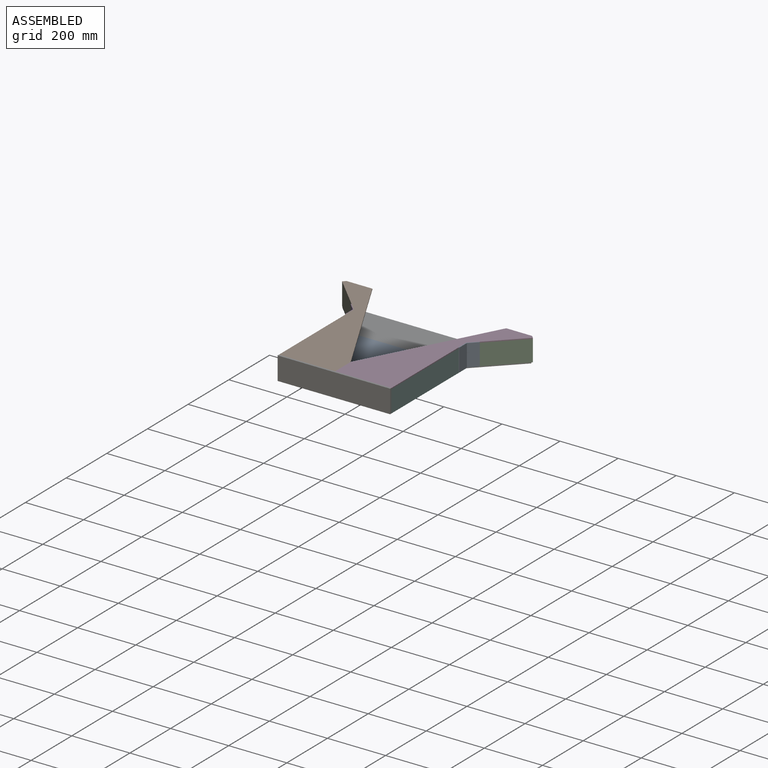
[diagram: assembled view]
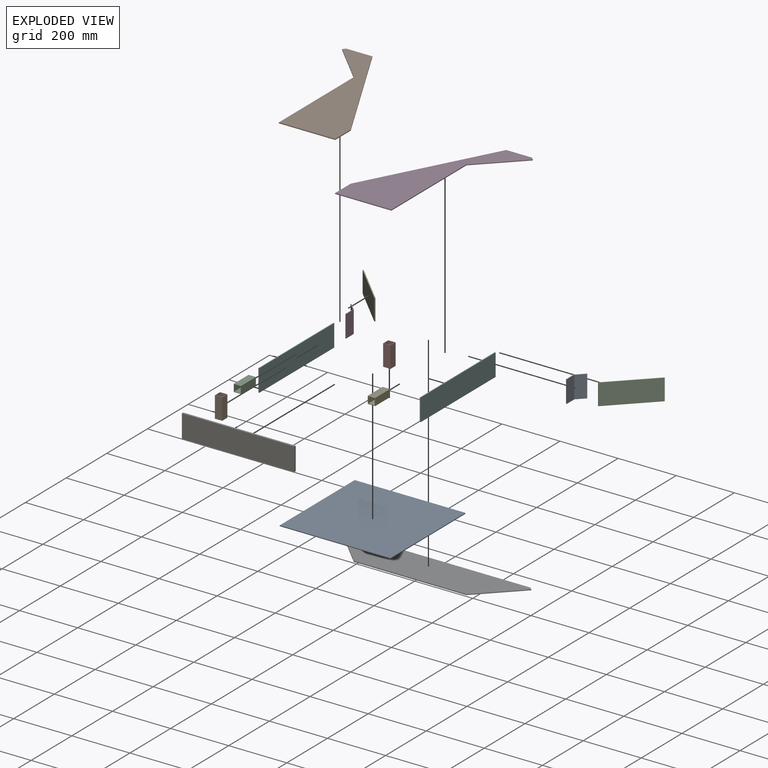
[diagram: exploded view]
GUIDED TOUR — MATED ASSEMBLY (Onshape document d573dde9a686d6dadded9dd4, AutoMate assembly d573dde9a686d6dadded9dd4_402b70009f37f6757999efcf_c0ec6f7262777a5b8ceee81c_default)

This assembly has 15 components, labeled P0..P14 below (a component is one placed occurrence of a part; the same part can appear more than once), held together by 14 mates. A mate is a constraint between two components; its type names the relative motion it leaves free:
  FASTENED — locks the two components together rigidly (no relative motion).
Axis/direction vectors are unit vectors and 'through' points are millimeter coordinates, both in the assembly's world frame.

MATES
  1. FASTENED "Fastened 15": P5 <-> P11, direction (-1.000, 0.000, 0.000) through (-198.62, 184.51, 35.01) mm
  2. FASTENED "Fastened 1": P8 <-> P2, direction (-0.707, 0.707, 0.000) through (188.73, 184.51, 38.18) mm
  3. FASTENED "Fastened 5": P0 <-> P1, direction (0.000, 0.000, 1.000) through (-195.44, -183.79, 38.18) mm
  4. FASTENED "Fastened 14": P8 <-> P13, direction (-1.000, 0.000, 0.000) through (188.73, 184.51, 38.18) mm
  5. FASTENED "Fastened 8": P0 <-> P5, direction (-1.000, 0.000, 0.000) through (-195.44, 184.51, 35.01) mm
  6. FASTENED "Fastened 7": P0 <-> P13, direction (1.000, 0.000, 0.000) through (185.56, 184.51, 35.01) mm
  7. FASTENED "Fastened 10": P7 <-> P12, direction (0.000, 1.000, 0.000) through (160.16, -158.39, 111.21) mm
  8. FASTENED "Fastened 13": P9 <-> P5, direction (0.000, 0.000, -1.000) through (-198.62, -183.79, 111.21) mm
  9. FASTENED "Fastened 9": P6 <-> P13, direction (0.000, 1.000, 0.000) through (188.73, -183.79, 35.01) mm
  10. FASTENED "Fastened 17": P14 <-> P0, direction (0.000, -1.000, 0.000) through (-4.94, 184.51, 36.59) mm
  11. FASTENED "Fastened 11": P10 <-> P1, direction (0.000, -1.000, 0.000) through (-195.44, -158.39, 111.21) mm
  12. FASTENED "Fastened 16": P4 <-> P11, direction (-0.707, -0.707, 0.000) through (-198.62, 184.51, 38.18) mm
  13. FASTENED "Fastened 12": P3 <-> P13, direction (0.000, 0.000, 1.000) through (188.73, -183.79, 114.38) mm
  14. FASTENED "Fastened 6": P0 <-> P7, direction (0.000, 0.000, 1.000) through (185.56, -183.79, 38.18) mm

ASSEMBLY ORDER
  1. P11 — the base component [order verified]
  2. P4 [order verified]
  3. P5 [order verified]
  4. P12 [order verified]
  5. P13 [order verified]
  6. P7 [order verified]
  7. P2 [order verified]
  8. P8 [order verified]
  9. P10 [order verified]
  10. P1 [order verified]
  11. P0 [order verified]
  12. P9 [order verified]
  13. P14 [order verified]
  14. P3 [order verified]
  15. P6 [order verified]
Order-tag legend:
  [order verified] — this step's position reverses a verified removal order: the component was checked to insert without passing through the ones already placed.

Of the 15 components, 10 carry the full construction recipe — the FeatureScript program that regenerates the part's solid from scratch; the rest are supplied as boundary geometry only.
Because this assembly has more than 12 components, the tour below covers the 12 most significant ones individually (every recipe-attached component first, then the largest by part volume), in assembly order; the remaining 3 are summarized together in a grouped section at the end.
Each toured component is shown spotlighted twice — in the assembled view, then in the exploded view, where a leader line traces a displaced component back to its assembled socket (saturated green if recipe-attached, orange if geometry-only; every other component desaturated gray) — followed by its recipe or geometry summary and the mates that hold it.
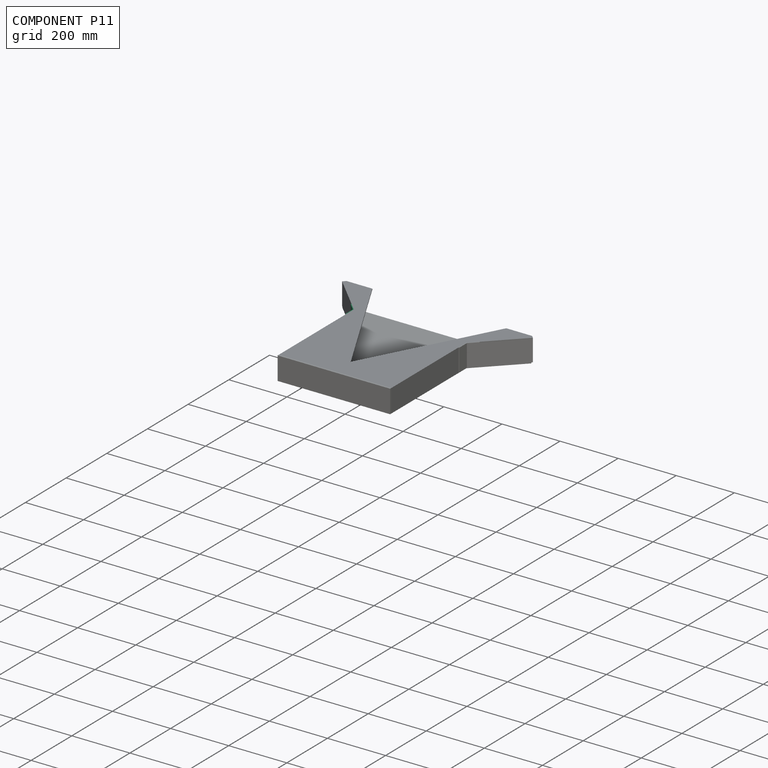
[diagram: component P11 — assembled]
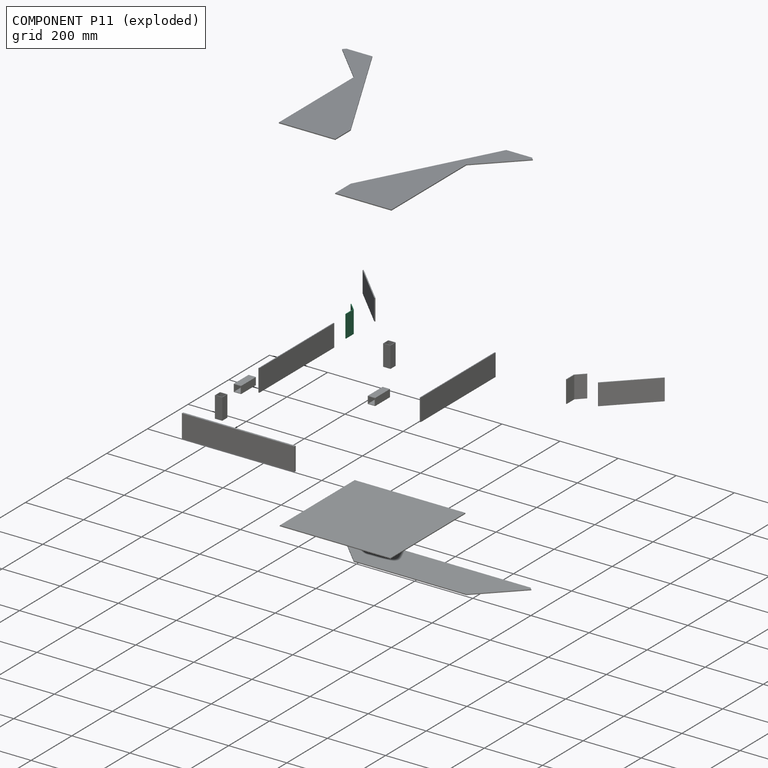
[diagram: component P11 — exploded]
COMPONENT P11 — same part as P8 (CADFS 00448065); its construction recipe is shown at P8.
Held by: FASTENED mate "Fastened 15" to P5; FASTENED mate "Fastened 16" to P4.
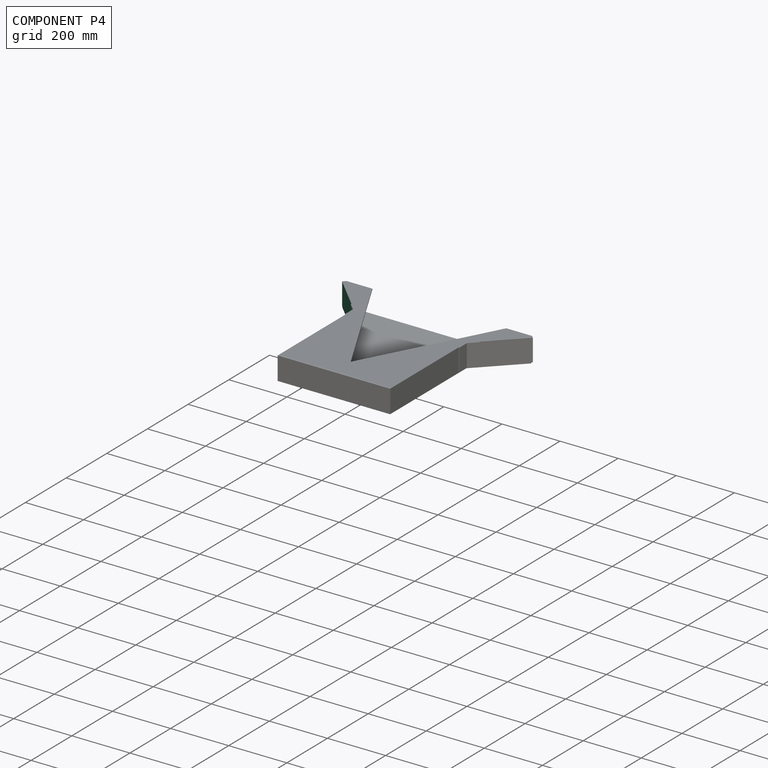
[diagram: component P4 — assembled]
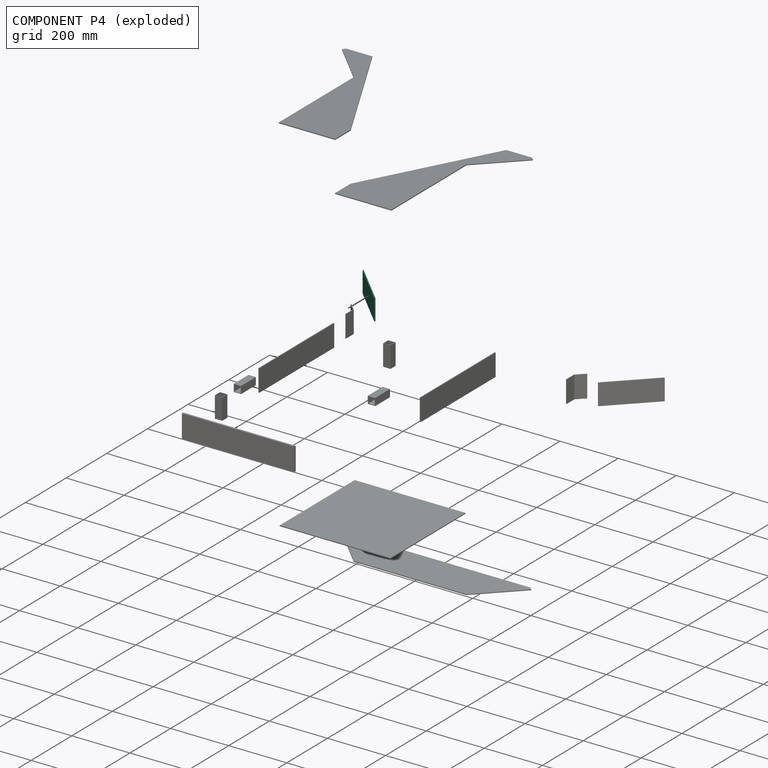
[diagram: component P4 — exploded]
COMPONENT P4 — same part as P2 (CADFS 00448063); its construction recipe is shown at P2.
Held by: FASTENED mate "Fastened 16" to P11.
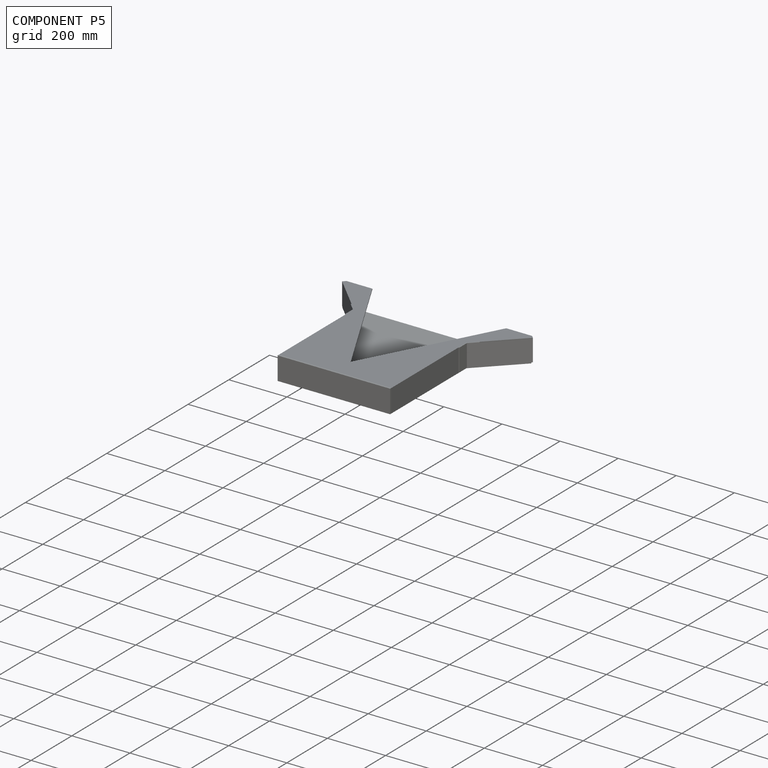
[diagram: component P5 — assembled]
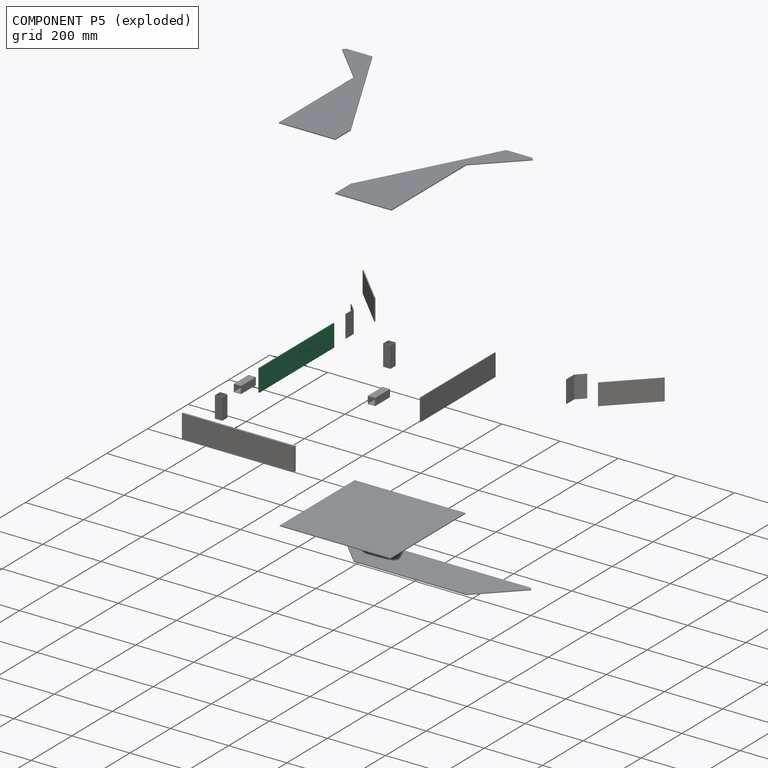
[diagram: component P5 — exploded]
COMPONENT P5 — recipe-attached (CADFS 00448055, mesh-verified: the recipe's output STEP matches this component's geometry to below the mesh-comparison resolution (tessellation chordal tolerance ~0.564 mm)).
Held by: FASTENED mate "Fastened 15" to P11; FASTENED mate "Fastened 8" to P0; FASTENED mate "Fastened 13" to P9.
Construction recipe (FeatureScript — the CAD program that rebuilds this solid; sketch coordinates are in the units given by the * unit suffixes, e.g. mm):

FeatureScript 1549;
import(path : "onshape/std/geometry.fs", version : "1549.0");
import(path : "onshape/std/common.fs", version : "1549.0");
const mm = millimeter;
const VERTEX = EntityType.VERTEX;
const EDGE = EntityType.EDGE;
const FACE = EntityType.FACE;
const BODY = EntityType.BODY;
function v(x, y){return vector(x, y);}
function OD(order){return orderDisambiguation(order);}
function OSD(set){return originalSetDisambiguation(set);}
function TD(topology){return topologyDisambiguation(topology);}
function TDD(query){return trueDependencyDisambiguation(query);}
function sQuery(a, b, c) {return sketchEntityQuery(a, b, c);}

annotation { "Feature Type Name" : "Feature", "Feature Type Description" : "" }
export const myFeature = defineFeature(function(context is Context, id is Id, definition is map)
    precondition{}
    {
        {
            var Q0;
            Q0=qCreatedBy(makeId("Top.planeOp"),FACE);
            var sketch = newSketch(context, id + "F0", { "sketchPlane" : qUnion([Q0])});
            skLineSegment(sketch, "E0.bottom", {"start": v(-184.15, 38.1) * mm, "end": v(184.15, 38.1) * mm});
            skLineSegment(sketch, "E0.top", {"start": v(-184.15, -38.1) * mm, "end": v(184.15, -38.1) * mm});
            skLineSegment(sketch, "E0.left", {"start": v(-184.15, 38.1) * mm, "end": v(-184.15, -38.1) * mm});
            skLineSegment(sketch, "E0.right", {"start": v(184.15, 38.1) * mm, "end": v(184.15, -38.1) * mm});
            skPoint(sketch, "E0.middle", {"position": v(0, 0) * mm});
            skSolve(sketch);
        }
        {
            var Q0;
            Q0=qSketchRegion(id+"F0",true);
            extrude(context, id + "F1", {"entities" : qUnion([Q0]), "depth" : 3.17 * mm});
        }
    });
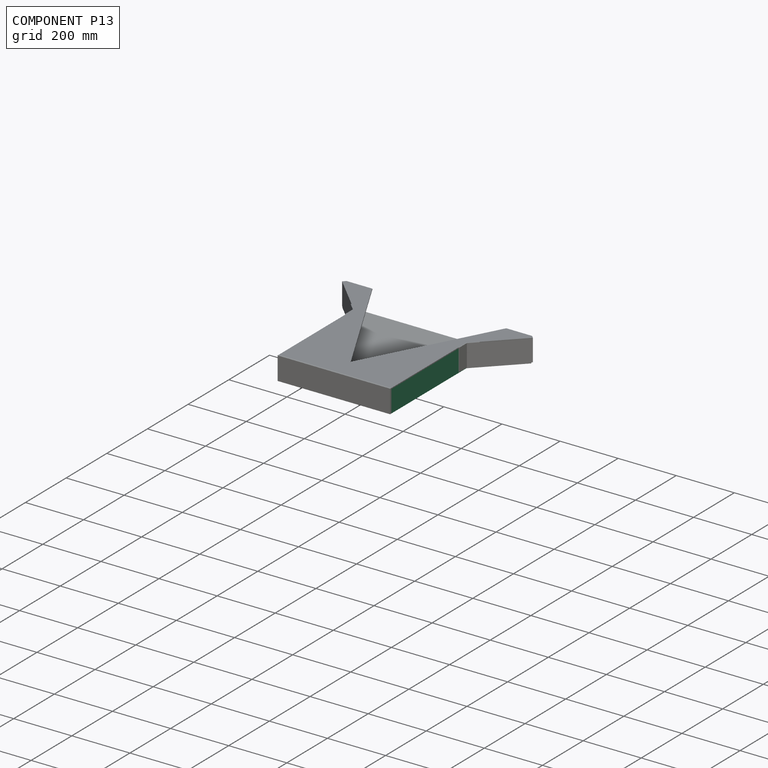
[diagram: component P13 — assembled]
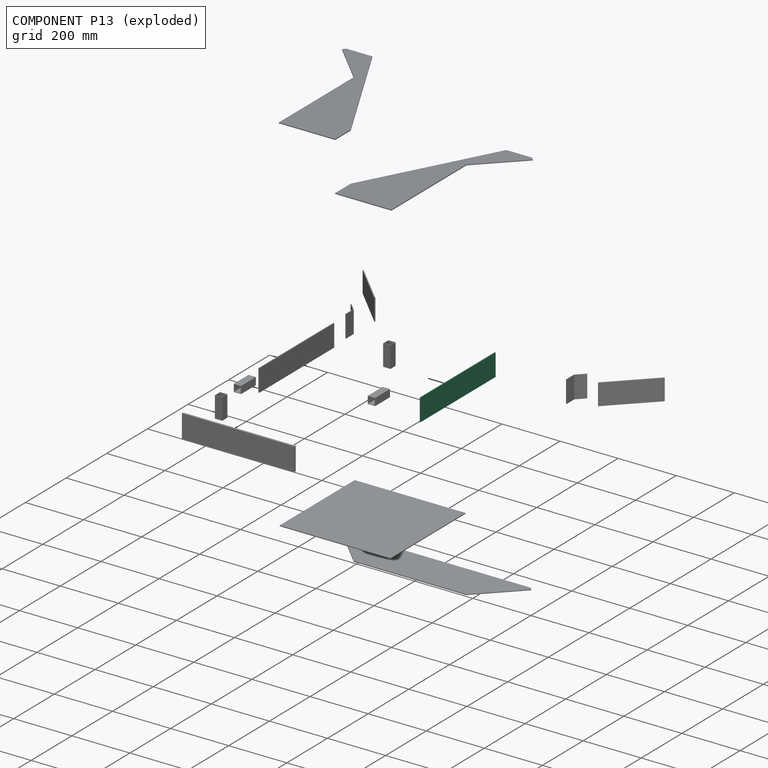
[diagram: component P13 — exploded]
COMPONENT P13 — same part as P5 (CADFS 00448055); its construction recipe is shown at P5.
Held by: FASTENED mate "Fastened 14" to P8; FASTENED mate "Fastened 7" to P0; FASTENED mate "Fastened 9" to P6; FASTENED mate "Fastened 12" to P3.
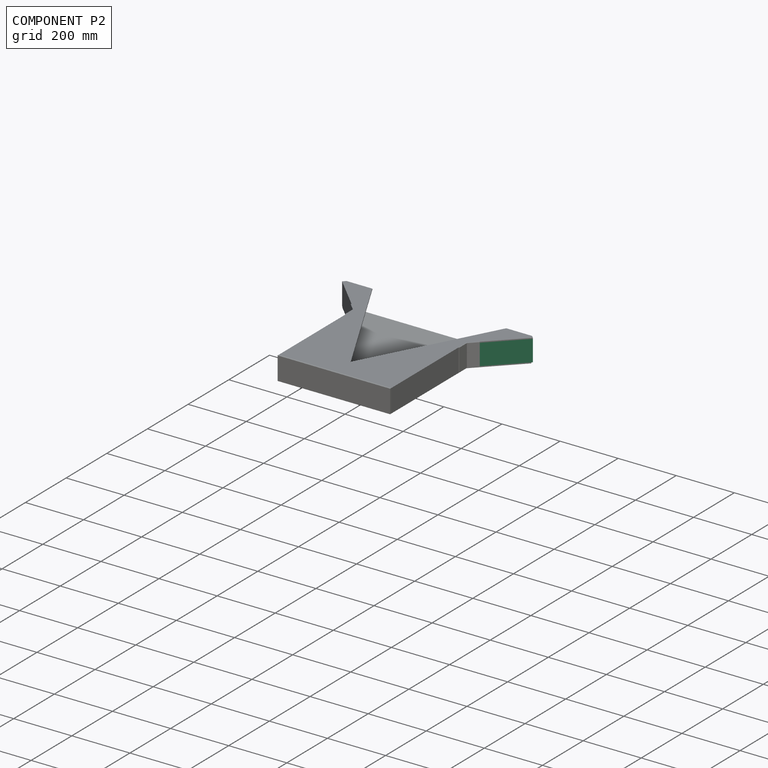
[diagram: component P2 — assembled]
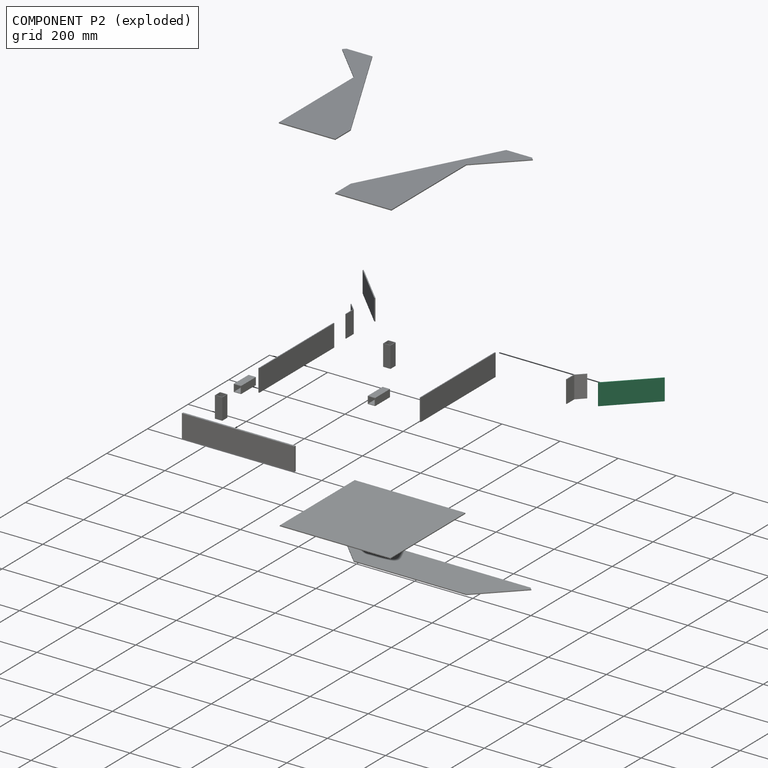
[diagram: component P2 — exploded]
COMPONENT P2 — recipe-attached (CADFS 00448063, mesh-verified: the recipe's output STEP matches this component's geometry to below the mesh-comparison resolution (tessellation chordal tolerance ~0.306 mm)).
Held by: FASTENED mate "Fastened 1" to P8.
Construction recipe (FeatureScript — the CAD program that rebuilds this solid; sketch coordinates are in the units given by the * unit suffixes, e.g. mm):

FeatureScript 1549;
import(path : "onshape/std/geometry.fs", version : "1549.0");
import(path : "onshape/std/common.fs", version : "1549.0");
const mm = millimeter;
const VERTEX = EntityType.VERTEX;
const EDGE = EntityType.EDGE;
const FACE = EntityType.FACE;
const BODY = EntityType.BODY;
function v(x, y){return vector(x, y);}
function OD(order){return orderDisambiguation(order);}
function OSD(set){return originalSetDisambiguation(set);}
function TD(topology){return topologyDisambiguation(topology);}
function TDD(query){return trueDependencyDisambiguation(query);}
function sQuery(a, b, c) {return sketchEntityQuery(a, b, c);}

annotation { "Feature Type Name" : "Feature", "Feature Type Description" : "" }
export const myFeature = defineFeature(function(context is Context, id is Id, definition is map)
    precondition{}
    {
        {
            var Q0;
            Q0=qCreatedBy(makeId("Front.planeOp"),FACE);
            var sketch = newSketch(context, id + "F0", { "sketchPlane" : qUnion([Q0])});
            skLineSegment(sketch, "E0", {"start": v(0, 0) * mm, "end": v(190.5, 0) * mm});
            skLineSegment(sketch, "E1", {"start": v(0, 0) * mm, "end": v(0, 73.02) * mm});
            skLineSegment(sketch, "E2", {"start": v(190.5, 0) * mm, "end": v(190.5, 73.02) * mm});
            skLineSegment(sketch, "E3", {"start": v(0, 73.02) * mm, "end": v(190.5, 73.02) * mm});
            skSolve(sketch);
        }
        {
            var Q0;
            Q0=makeQuery(id+"F0.imprint","IMPRINT",FACE,{"disambiguationData":[TD([[makeQuery(id+"F0.imprint","IMPRINT",EDGE,{"derivedFrom":sQuery(id+"F0.wireOp",EDGE,"E0")}),1.0]])]});
            extrude(context, id + "F1", {"entities" : qUnion([Q0]), "depth" : 3.17 * mm});
        }
    });
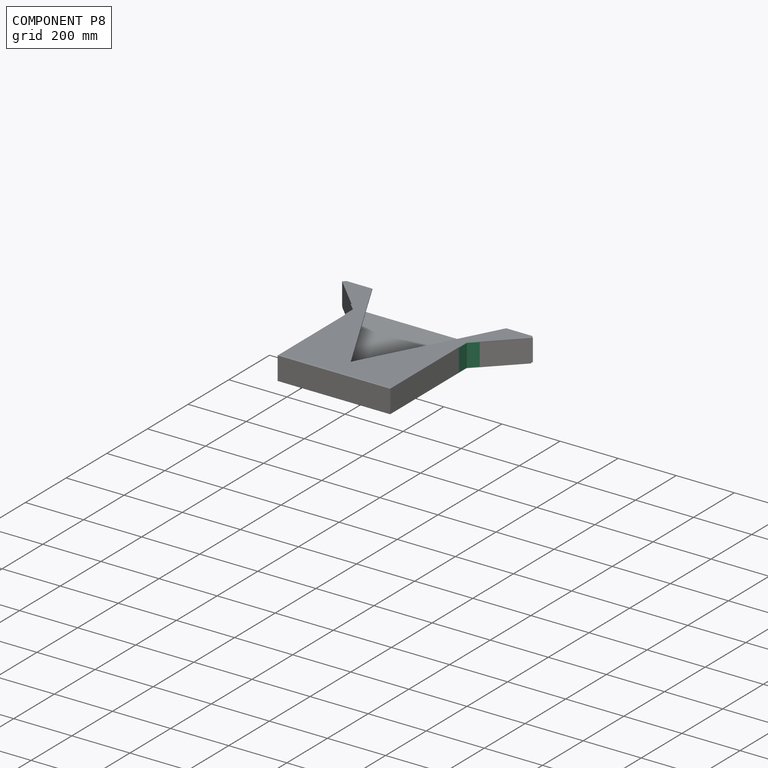
[diagram: component P8 — assembled]
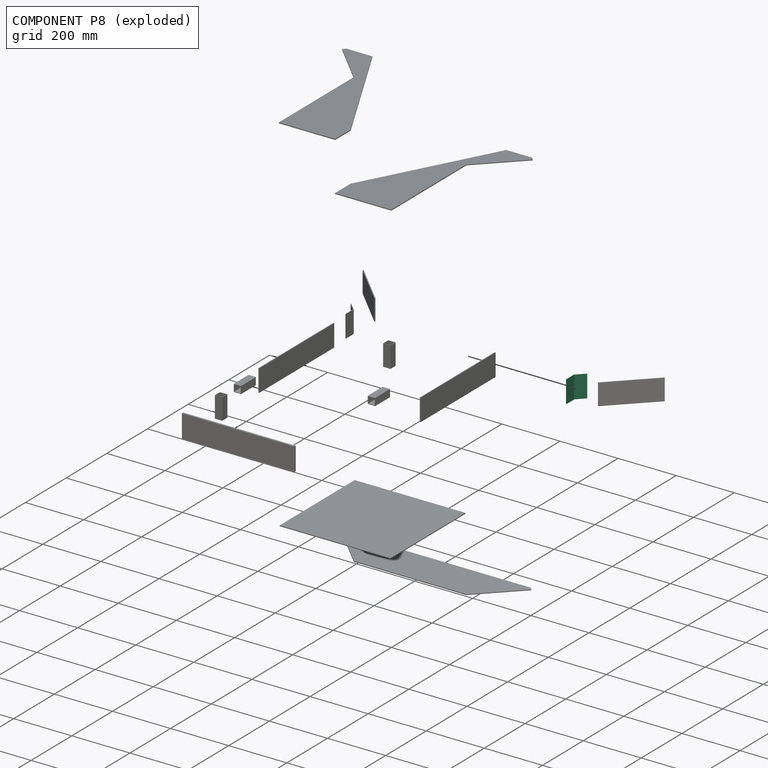
[diagram: component P8 — exploded]
COMPONENT P8 — recipe-attached (CADFS 00448065, mesh-verified: the recipe's output STEP matches this component's geometry to below the mesh-comparison resolution (tessellation chordal tolerance ~0.156 mm)).
Held by: FASTENED mate "Fastened 1" to P2; FASTENED mate "Fastened 14" to P13.
Construction recipe (FeatureScript — the CAD program that rebuilds this solid; sketch coordinates are in the units given by the * unit suffixes, e.g. mm):

FeatureScript 1549;
import(path : "onshape/std/geometry.fs", version : "1549.0");
import(path : "onshape/std/common.fs", version : "1549.0");
const mm = millimeter;
const VERTEX = EntityType.VERTEX;
const EDGE = EntityType.EDGE;
const FACE = EntityType.FACE;
const BODY = EntityType.BODY;
function v(x, y){return vector(x, y);}
function OD(order){return orderDisambiguation(order);}
function OSD(set){return originalSetDisambiguation(set);}
function TD(topology){return topologyDisambiguation(topology);}
function TDD(query){return trueDependencyDisambiguation(query);}
function sQuery(a, b, c) {return sketchEntityQuery(a, b, c);}

annotation { "Feature Type Name" : "Feature", "Feature Type Description" : "" }
export const myFeature = defineFeature(function(context is Context, id is Id, definition is map)
    precondition{}
    {
        {
            var Q0;
            Q0=qCreatedBy(makeId("Front.planeOp"),FACE);
            var sketch = newSketch(context, id + "F0", { "sketchPlane" : qUnion([Q0])});
            skLineSegment(sketch, "E0", {"start": v(0, 0) * mm, "end": v(38.1, 0) * mm});
            skLineSegment(sketch, "E1", {"start": v(38.1, 0) * mm, "end": v(65.04, 26.94) * mm});
            skLineSegment(sketch, "E2.0", {"start": v(37.05, 2.54) * mm, "end": v(63.24, 28.74) * mm});
            skLineSegment(sketch, "E2.1", {"start": v(0, 2.54) * mm, "end": v(37.05, 2.54) * mm});
            skLineSegment(sketch, "E3", {"start": v(0, 2.54) * mm, "end": v(0, 0) * mm});
            skLineSegment(sketch, "E4", {"start": v(63.24, 28.74) * mm, "end": v(65.04, 26.94) * mm});
            skSolve(sketch);
        }
        {
            var Q0;
            Q0=makeQuery(id+"F0.imprint","IMPRINT",FACE,{"disambiguationData":[TD([[makeQuery(id+"F0.imprint","IMPRINT",EDGE,{"derivedFrom":sQuery(id+"F0.wireOp",EDGE,"E0")}),1.0]])]});
            extrude(context, id + "F1", {"entities" : qUnion([Q0]), "depth" : 76.2 * mm});
        }
    });
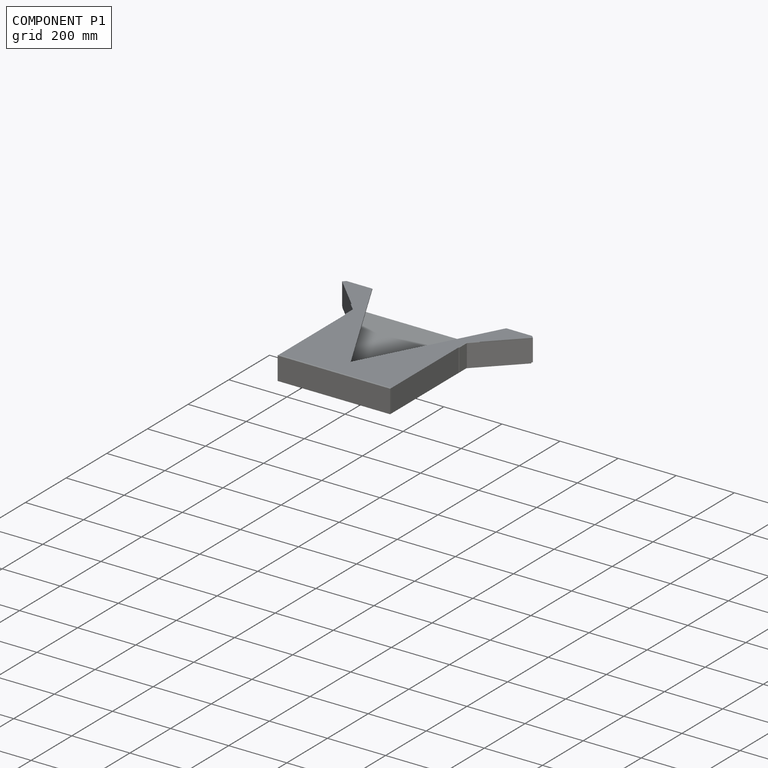
[diagram: component P1 — assembled]
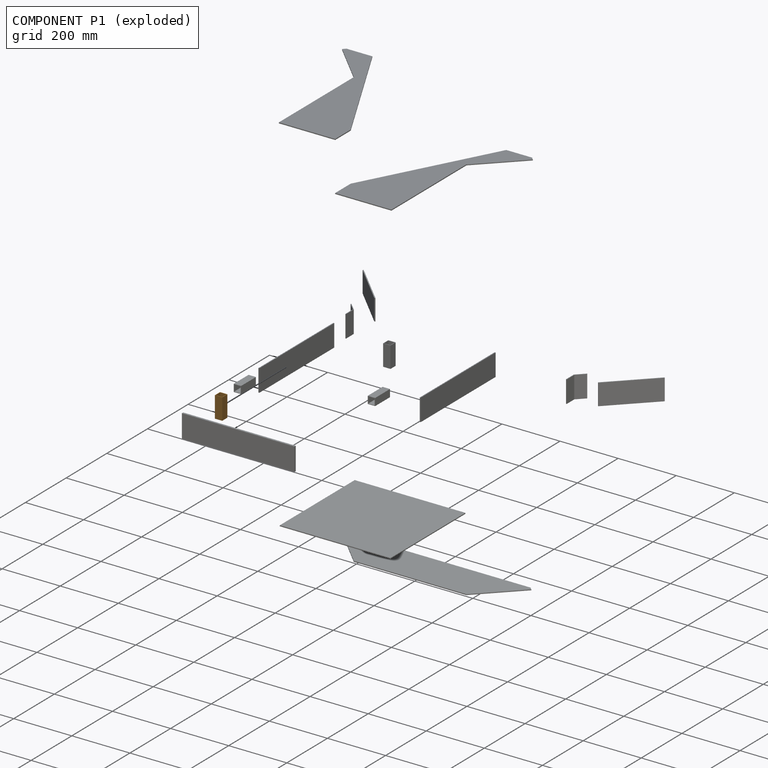
[diagram: component P1 — exploded]
COMPONENT P1 — geometry summary (no construction recipe available for this part):
  bounding box: 73.0 x 25.4 x 25.4 mm
  B-rep topology: 1 solid, 10 faces, 48 edges
  volume: 11042 mm^3 (23% of its bounding box)
  symmetry: 2-fold rotationally symmetric about the x axis; 2-fold rotationally symmetric about the y axis; 4-fold rotationally symmetric about the z axis; mirror-symmetric across its x mid-plane, y mid-plane, z mid-plane
Held by: FASTENED mate "Fastened 5" to P0; FASTENED mate "Fastened 11" to P10.
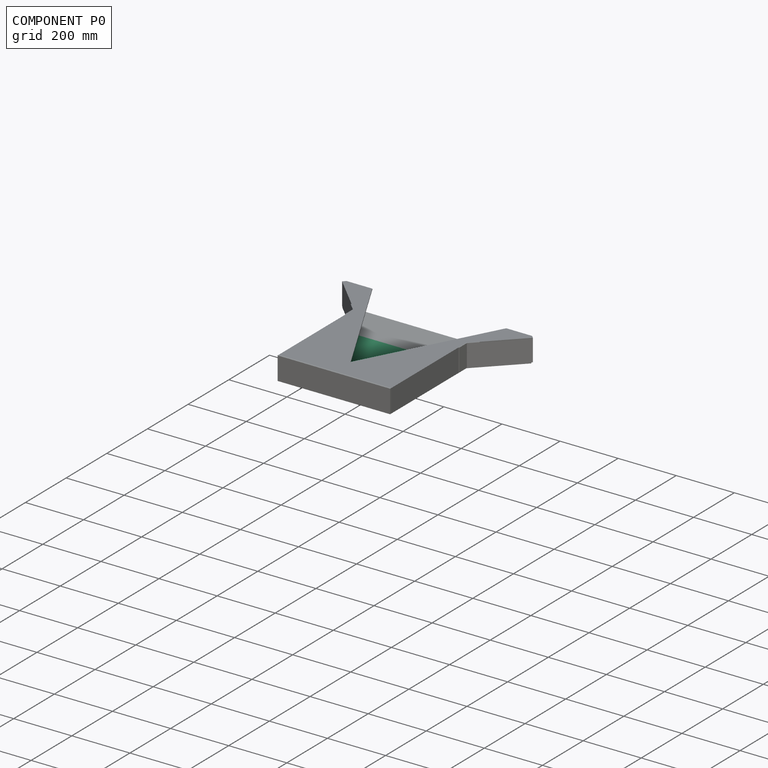
[diagram: component P0 — assembled]
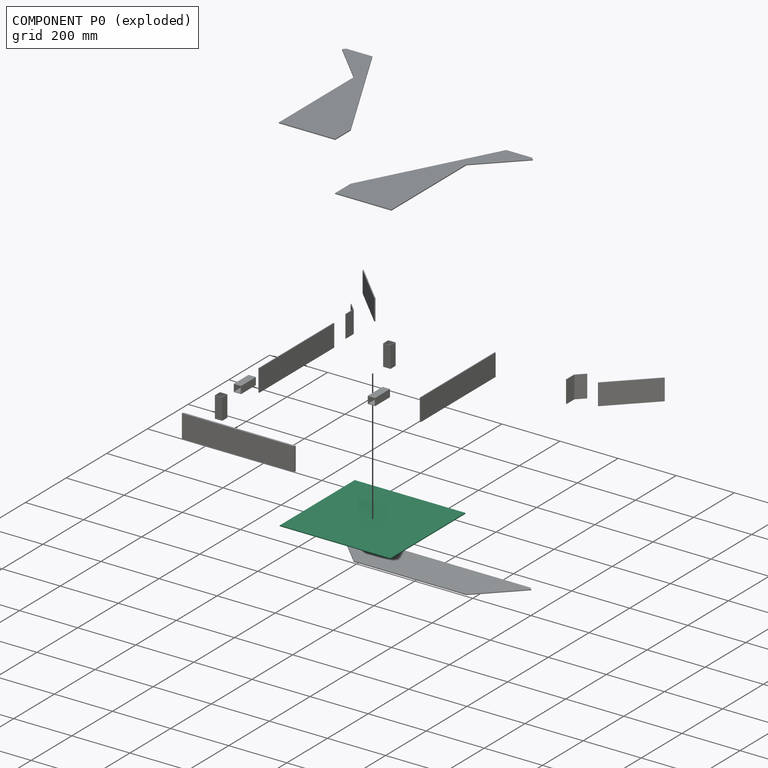
[diagram: component P0 — exploded]
COMPONENT P0 — recipe-attached (CADFS 00448054, mesh-verified: the recipe's output STEP matches this component's geometry to below the mesh-comparison resolution (tessellation chordal tolerance ~0.795 mm)).
Held by: FASTENED mate "Fastened 5" to P1; FASTENED mate "Fastened 8" to P5; FASTENED mate "Fastened 7" to P13; FASTENED mate "Fastened 17" to P14; FASTENED mate "Fastened 6" to P7.
Construction recipe (FeatureScript — the CAD program that rebuilds this solid; sketch coordinates are in the units given by the * unit suffixes, e.g. mm):

FeatureScript 1549;
import(path : "onshape/std/geometry.fs", version : "1549.0");
import(path : "onshape/std/common.fs", version : "1549.0");
const mm = millimeter;
const VERTEX = EntityType.VERTEX;
const EDGE = EntityType.EDGE;
const FACE = EntityType.FACE;
const BODY = EntityType.BODY;
function v(x, y){return vector(x, y);}
function OD(order){return orderDisambiguation(order);}
function OSD(set){return originalSetDisambiguation(set);}
function TD(topology){return topologyDisambiguation(topology);}
function TDD(query){return trueDependencyDisambiguation(query);}
function sQuery(a, b, c) {return sketchEntityQuery(a, b, c);}

annotation { "Feature Type Name" : "Feature", "Feature Type Description" : "" }
export const myFeature = defineFeature(function(context is Context, id is Id, definition is map)
    precondition{}
    {
        {
            var Q0;
            Q0=qCreatedBy(makeId("Top.planeOp"),FACE);
            var sketch = newSketch(context, id + "F0", { "sketchPlane" : qUnion([Q0])});
            skLineSegment(sketch, "E0.bottom", {"start": v(-190.5, 184.15) * mm, "end": v(190.5, 184.15) * mm});
            skLineSegment(sketch, "E0.top", {"start": v(-190.5, -184.15) * mm, "end": v(190.5, -184.15) * mm});
            skLineSegment(sketch, "E0.left", {"start": v(-190.5, 184.15) * mm, "end": v(-190.5, -184.15) * mm});
            skLineSegment(sketch, "E0.right", {"start": v(190.5, 184.15) * mm, "end": v(190.5, -184.15) * mm});
            skPoint(sketch, "E0.middle", {"position": v(0, 0) * mm});
            skSolve(sketch);
        }
        {
            var Q0;
            Q0 = qSketchRegion(id + "F0", true);
            extrude(context, id + "F1", {"entities" : qUnion([Q0]), "depth" : 3.17 * mm});
        }
    });
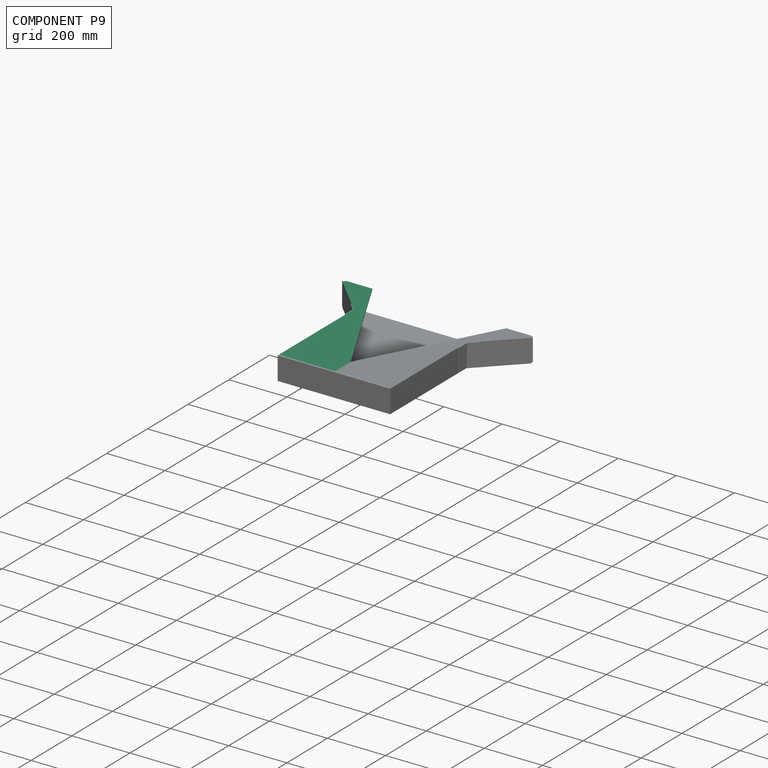
[diagram: component P9 — assembled]
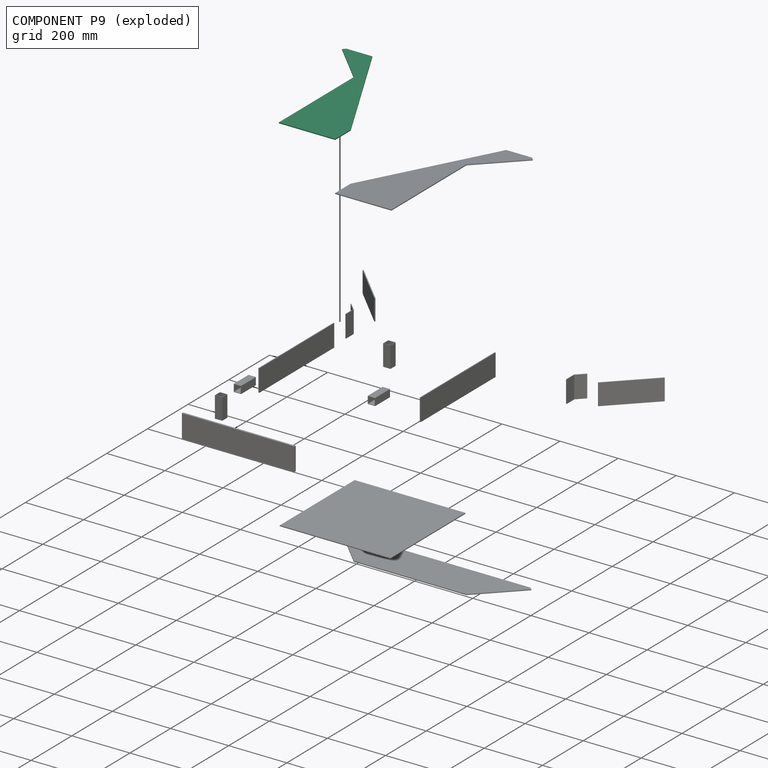
[diagram: component P9 — exploded]
COMPONENT P9 — same part as P3 (CADFS 00448056); its construction recipe is shown at P3.
Held by: FASTENED mate "Fastened 13" to P5.
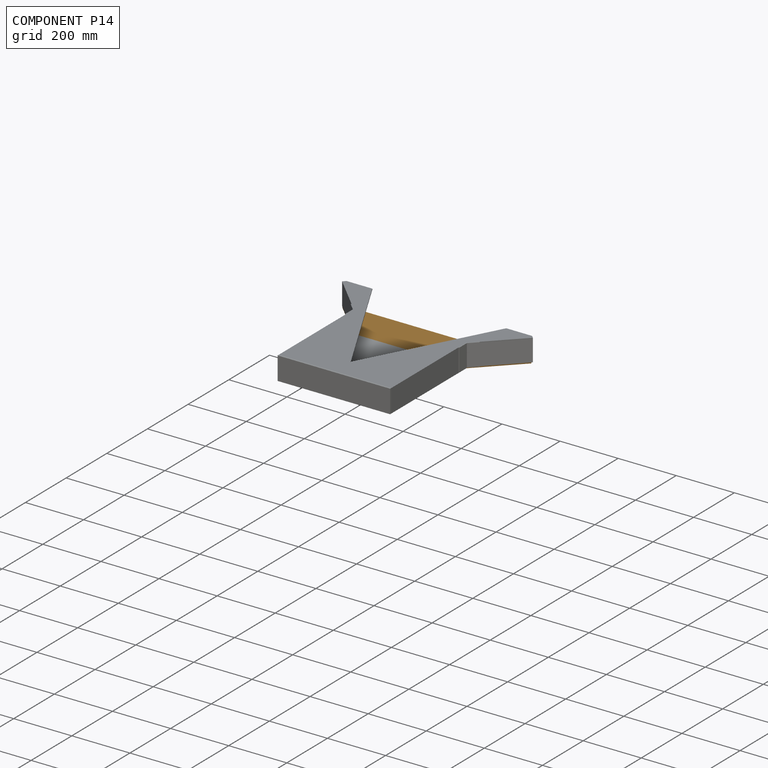
[diagram: component P14 — assembled]
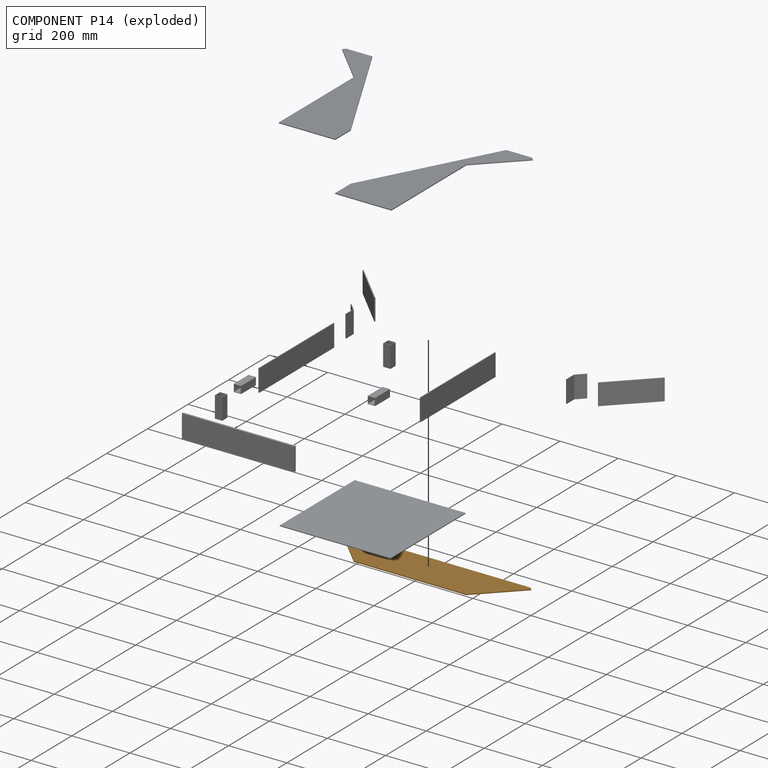
[diagram: component P14 — exploded]
COMPONENT P14 — geometry summary (no construction recipe available for this part):
  bounding box: 650.5 x 139.7 x 3.2 mm
  B-rep topology: 1 solid, 8 faces, 36 edges
  volume: 233351 mm^3 (81% of its bounding box)
  symmetry: 2-fold rotationally symmetric about the z axis; mirror-symmetric across its x mid-plane, y mid-plane
Held by: FASTENED mate "Fastened 17" to P0.
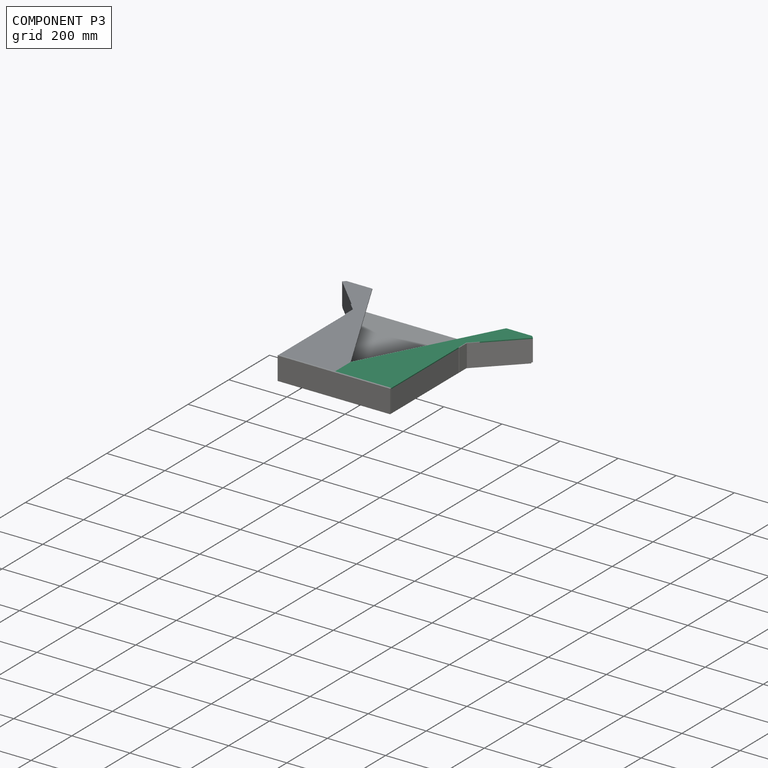
[diagram: component P3 — assembled]
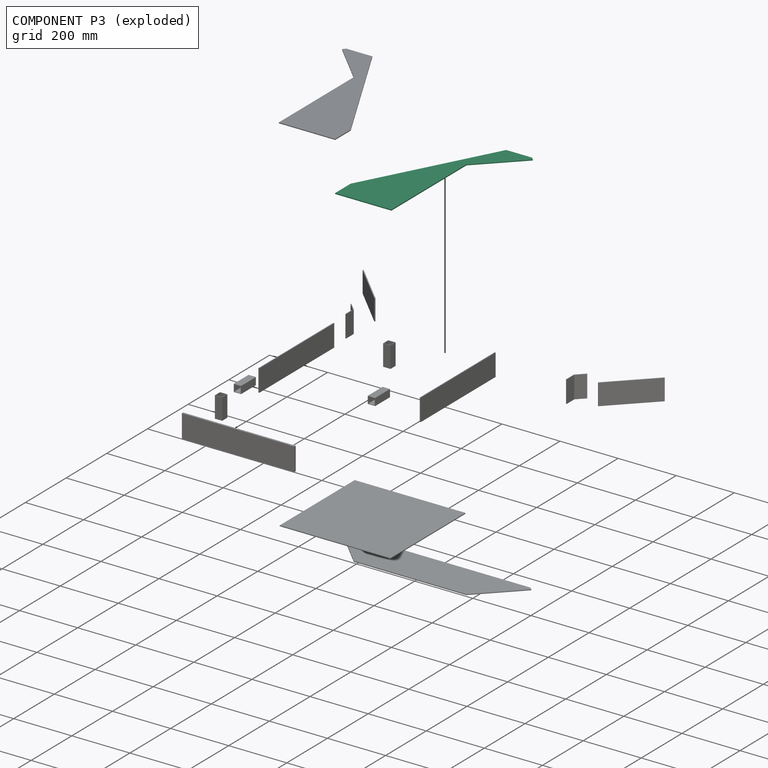
[diagram: component P3 — exploded]
COMPONENT P3 — recipe-attached (CADFS 00448056, mesh-verified: the recipe's output STEP matches this component's geometry to below the mesh-comparison resolution (tessellation chordal tolerance ~0.912 mm)).
Held by: FASTENED mate "Fastened 12" to P13.
Construction recipe (FeatureScript — the CAD program that rebuilds this solid; sketch coordinates are in the units given by the * unit suffixes, e.g. mm):

FeatureScript 1549;
import(path : "onshape/std/geometry.fs", version : "1549.0");
import(path : "onshape/std/common.fs", version : "1549.0");
const mm = millimeter;
const VERTEX = EntityType.VERTEX;
const EDGE = EntityType.EDGE;
const FACE = EntityType.FACE;
const BODY = EntityType.BODY;
function v(x, y){return vector(x, y);}
function OD(order){return orderDisambiguation(order);}
function OSD(set){return originalSetDisambiguation(set);}
function TD(topology){return topologyDisambiguation(topology);}
function TDD(query){return trueDependencyDisambiguation(query);}
function sQuery(a, b, c) {return sketchEntityQuery(a, b, c);}

annotation { "Feature Type Name" : "Feature", "Feature Type Description" : "" }
export const myFeature = defineFeature(function(context is Context, id is Id, definition is map)
    precondition{}
    {
        {
            var Q0;
            Q0=qCreatedBy(makeId("Front.planeOp"),FACE);
            var sketch = newSketch(context, id + "F0", { "sketchPlane" : qUnion([Q0])});
            skLineSegment(sketch, "E0", {"start": v(0, 0) * mm, "end": v(193.68, 0) * mm});
            skLineSegment(sketch, "E1", {"start": v(0, 0) * mm, "end": v(0, 368.3) * mm});
            skLineSegment(sketch, "E2", {"start": v(193.68, 0) * mm, "end": v(193.68, 76.2) * mm});
            skLineSegment(sketch, "E3", {"start": v(0, 368.3) * mm, "end": v(-134.7, 503) * mm});
            skLineSegment(sketch, "E4", {"start": v(-134.7, 503) * mm, "end": v(-125.72, 511.98) * mm});
            skLineSegment(sketch, "E5", {"start": v(8.98, 377.28) * mm, "end": v(0, 368.3) * mm});
            skLineSegment(sketch, "E6", {"start": v(-125.72, 511.98) * mm, "end": v(-36.82, 511.98) * mm});
            skLineSegment(sketch, "E7", {"start": v(-36.82, 511.98) * mm, "end": v(193.68, 76.2) * mm});
            skSolve(sketch);
        }
        {
            var Q0;
            Q0=makeQuery(id+"F0.imprint","IMPRINT",FACE,{"disambiguationData":[TD([[makeQuery(id+"F0.imprint","IMPRINT",EDGE,{"derivedFrom":sQuery(id+"F0.wireOp",EDGE,"E0")}),1.0]])]});
            extrude(context, id + "F1", {"entities" : qUnion([Q0]), "depth" : 3.17 * mm});
        }
    });
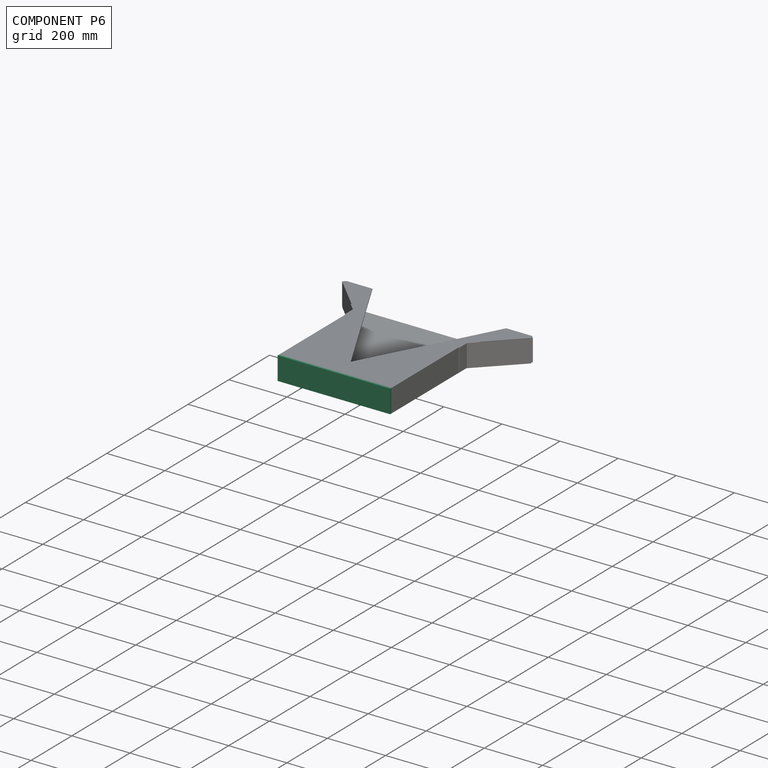
[diagram: component P6 — assembled]
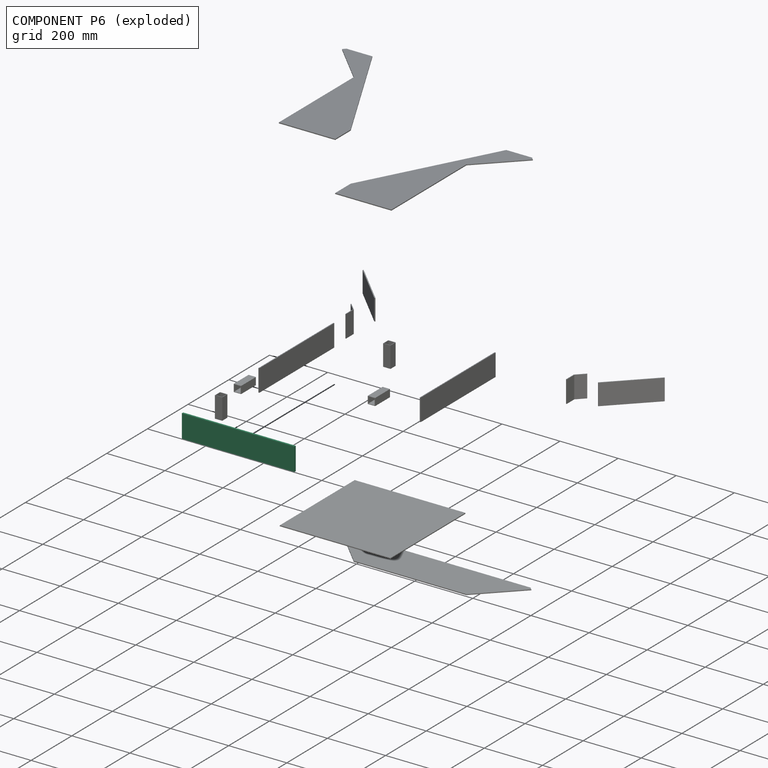
[diagram: component P6 — exploded]
COMPONENT P6 — recipe-attached (CADFS 00448066, mesh-verified: the recipe's output STEP matches this component's geometry to below the mesh-comparison resolution (tessellation chordal tolerance ~0.593 mm)).
Held by: FASTENED mate "Fastened 9" to P13.
Construction recipe (FeatureScript — the CAD program that rebuilds this solid; sketch coordinates are in the units given by the * unit suffixes, e.g. mm):

FeatureScript 1549;
import(path : "onshape/std/geometry.fs", version : "1549.0");
import(path : "onshape/std/common.fs", version : "1549.0");
const mm = millimeter;
const VERTEX = EntityType.VERTEX;
const EDGE = EntityType.EDGE;
const FACE = EntityType.FACE;
const BODY = EntityType.BODY;
function v(x, y){return vector(x, y);}
function OD(order){return orderDisambiguation(order);}
function OSD(set){return originalSetDisambiguation(set);}
function TD(topology){return topologyDisambiguation(topology);}
function TDD(query){return trueDependencyDisambiguation(query);}
function sQuery(a, b, c) {return sketchEntityQuery(a, b, c);}

annotation { "Feature Type Name" : "Feature", "Feature Type Description" : "" }
export const myFeature = defineFeature(function(context is Context, id is Id, definition is map)
    precondition{}
    {
        {
            var Q0;
            Q0=qCreatedBy(makeId("Top.planeOp"),FACE);
            var sketch = newSketch(context, id + "F0", { "sketchPlane" : qUnion([Q0])});
            skLineSegment(sketch, "E0.bottom", {"start": v(-193.67, 39.69) * mm, "end": v(193.67, 39.69) * mm});
            skLineSegment(sketch, "E0.top", {"start": v(-193.67, -39.69) * mm, "end": v(193.67, -39.69) * mm});
            skLineSegment(sketch, "E0.left", {"start": v(-193.67, 39.69) * mm, "end": v(-193.67, -39.69) * mm});
            skLineSegment(sketch, "E0.right", {"start": v(193.67, 39.69) * mm, "end": v(193.67, -39.69) * mm});
            skPoint(sketch, "E0.middle", {"position": v(0, 0) * mm});
            skSolve(sketch);
        }
        {
            var Q0;
            Q0=qSketchRegion(id+"F0",true);
            extrude(context, id + "F1", {"entities" : qUnion([Q0]), "depth" : 6.35 * mm});
        }
    });
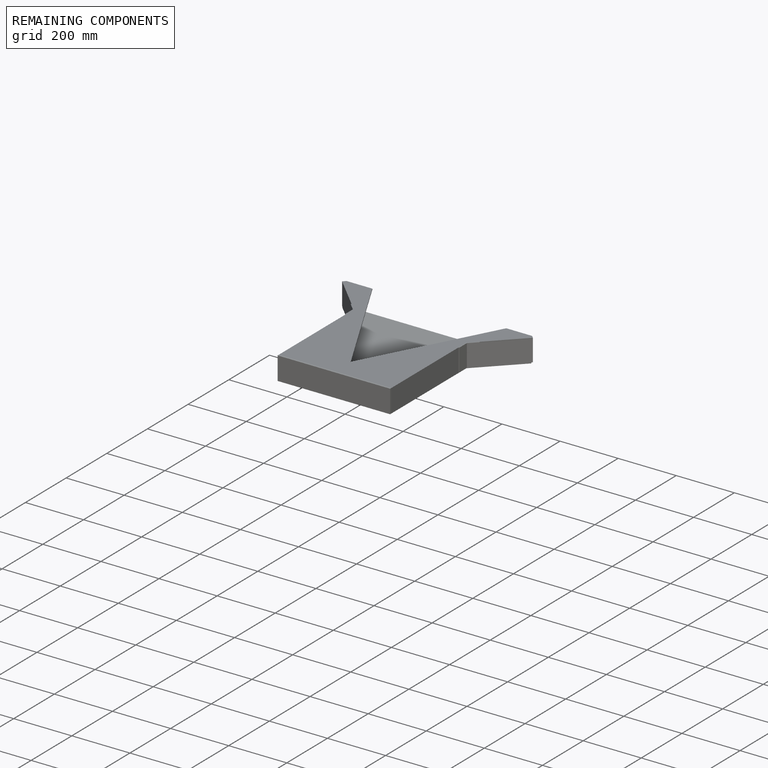
[diagram: remaining components — assembled]
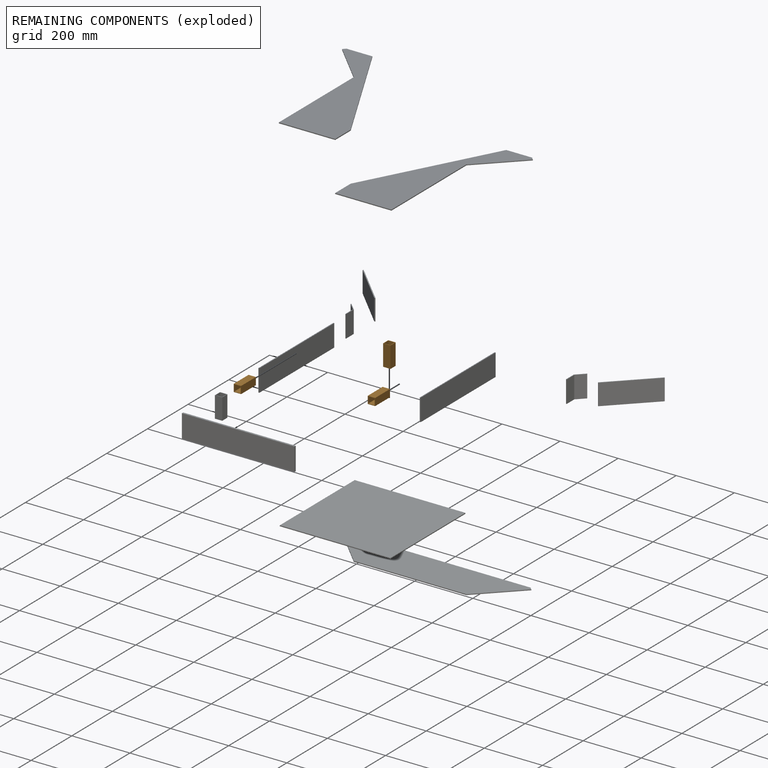
[diagram: remaining components — exploded]
REMAINING COMPONENTS (grouped) — the 3 components below fall outside the per-component tour by the significance rule stated above; both spotlight views highlight the whole group.
  P12: bounding box 73.0 x 25.4 x 25.4 mm, volume 11042 mm^3. Held by: FASTENED mate "Fastened 10" to P7.
  P7: bounding box 73.0 x 25.4 x 25.4 mm, volume 11042 mm^3. Held by: FASTENED mate "Fastened 10" to P12; FASTENED mate "Fastened 6" to P0.
  P10: bounding box 73.0 x 25.4 x 25.4 mm, volume 11042 mm^3. Held by: FASTENED mate "Fastened 11" to P1.
PROVENANCE & LICENSES
Assembly (occurrences, transforms, mates, per-part STEP geometry): AutoMate dataset, Zenodo record 7776208, CC0.
Construction recipes: CADFS (HuggingFace VladPyatov/CADFS, CC-BY-4.0, layered over the ABC dataset), FeatureScript reconstruction programs keyed by ABC model id.
Join: ABC meta listings map ABC model id -> Onshape documentId; within a shared document, parts are matched by geometric signature (bounding-box dims + volume at 0.1% relative tolerance, exact B-rep face/solid counts).
Verification: 10 of this assembly's 15 components carry a recipe attachment, and every attachment is mesh-verified: the CADFS STEP and the AutoMate member STEP were compared as meshes in their shared local frame (symmetric sampled-point-to-mesh distance); worst across the 10 attachments: below the mesh-comparison resolution (tessellation chordal tolerance ~0.912 mm) on a 608 mm part.
Renders: orthographic iso camera (az 35 / el 25); the floor grid conveys scale (grid pitch printed in each image; no ruler). In the exploded view each component is displaced by its stored offset vector: the offsets alone carry the explosion direction (mate normal/axis signs are not orientation cues and do not encode it), and separation distances are assigned per mate-chain, not proportionally to assembly-order depth.
